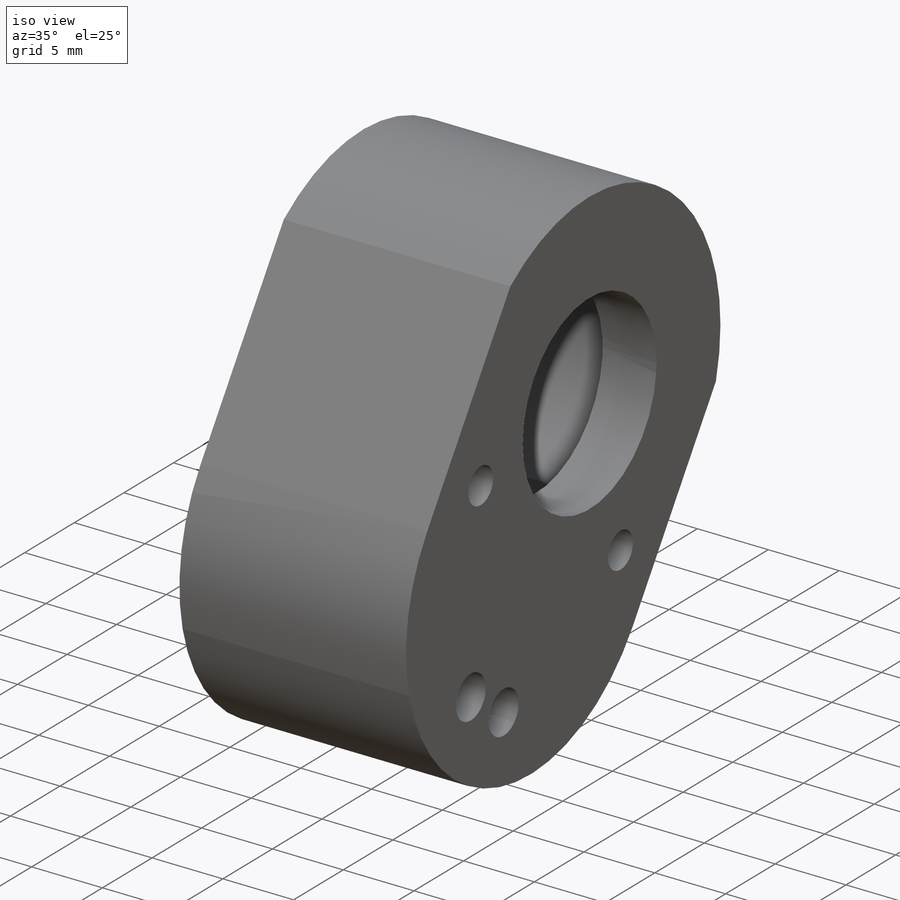
[diagram: iso view]
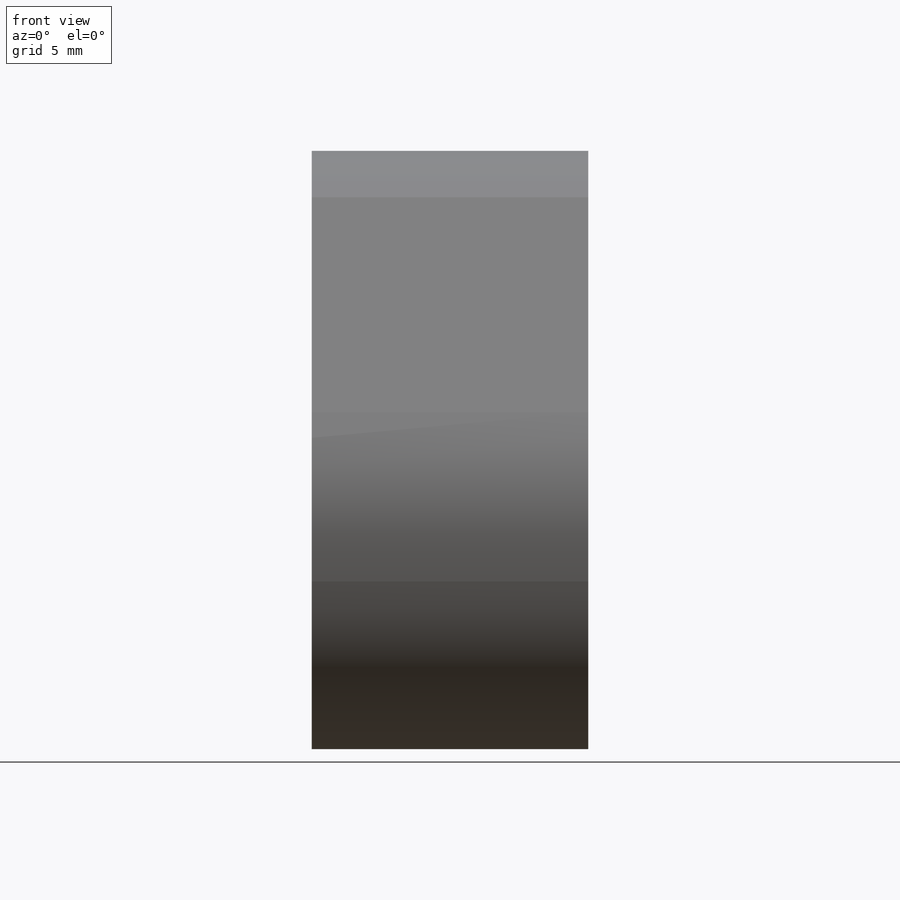
[diagram: front view]
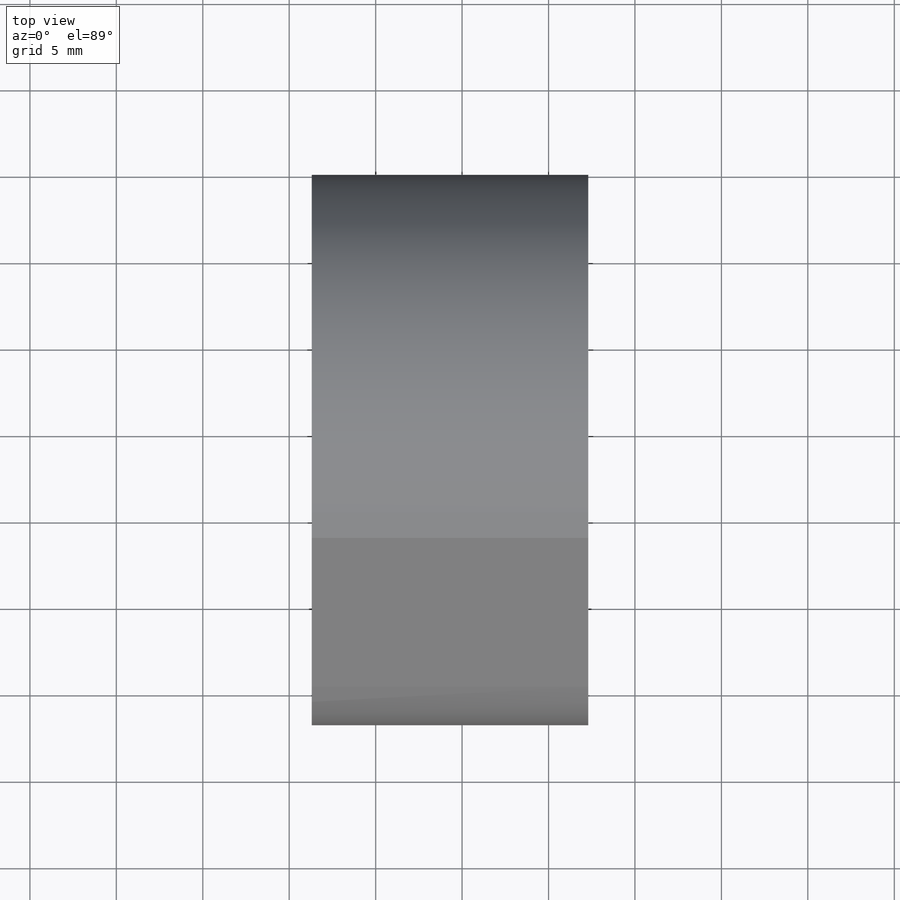
[diagram: top view]
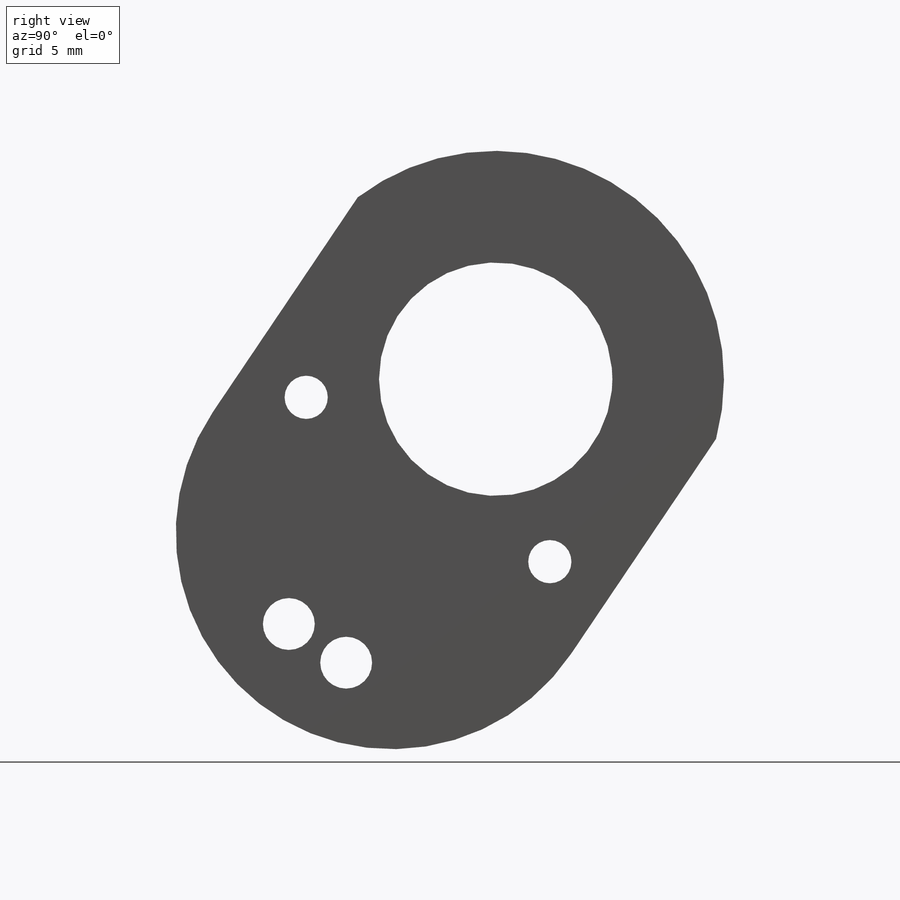
[diagram: right view]
SOLIDWORKS PART (.sldprt)
format: sldprt  version: not decoded by parser v0  size: 900,096 bytes
history: native  units: mm
features: sketch x5, plane x3, cut_extrude x3, extrude x2, material x1 (+10 scaffold rows collapsed)
feature tree (24):
  scaffold x10  (default folders/planes/origin — collapsed)
  material  "材质 <未指定>"
  plane  "前视基准面"
  plane  "上视基准面"
  plane  "右视基准面"
  sketch  "草图1"  dims[c1.D3=~11.37995mm c1.D6=11.3mm c1.D7=11.3mm c1.D8=13.5mm c1.D9=12.5mm c1.D1=15.0mm c1.D2=15.0mm c2.D3=~27.634049mm c3.D3=56.0deg c3.D4=25.0mm c3.D5=2.1mm c3.D9=1.0mm]
  extrude  "凸台-拉伸1"  Depth=16mm
  cut_extrude  "切除-拉伸1"  [1 undecoded]
  sketch  "草图1<3>"  dims[D1=13.5mm]
  cut_extrude  "切除-拉伸2"  [1 undecoded]
  sketch  "草图1<4>"
  sketch  "草图2"  dims[D1=1.0mm]
  extrude  "凸台-拉伸2"  Depth=10mm
  sketch  "草图3"  dims[c1.D1=2.5mm c1.D3=~1.572269mm c1.D4=3.0mm c1.D2=8.5mm c2.D3=2.0mm c2.D4=~9.338877mm c2.D5=7.0mm]
  cut_extrude  "切除-拉伸4"  [1 undecoded]
decode coverage: 6 of 10 modeling features carry decoded parameters
note: ~ marks probable driven/reference dimensions
note: 3 parameter values undecoded
summary: no parameter record found for 3 features
note: suppression state not decoded; provenance and decode notes live in map.json
